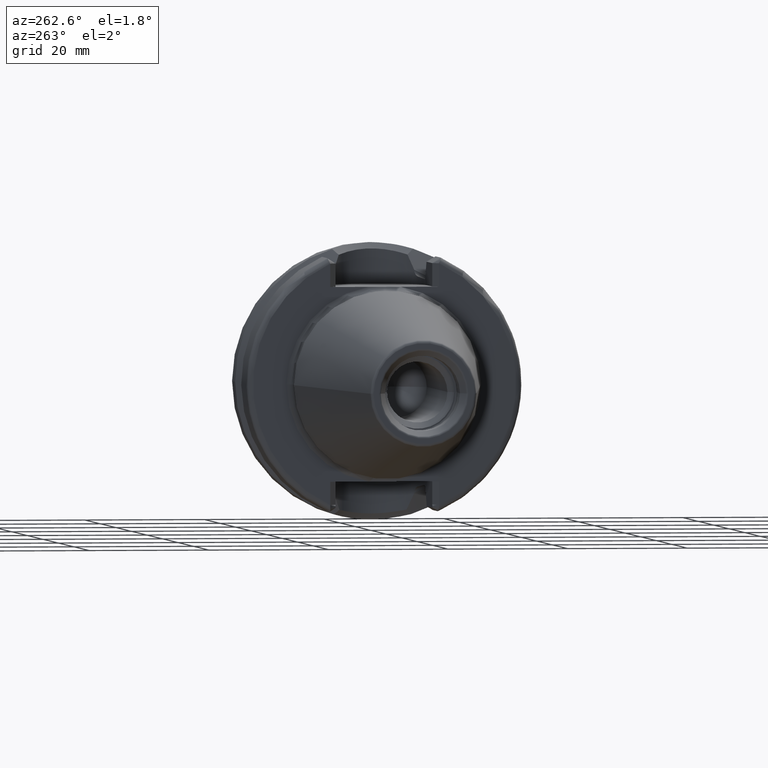
[diagram: clean part render]
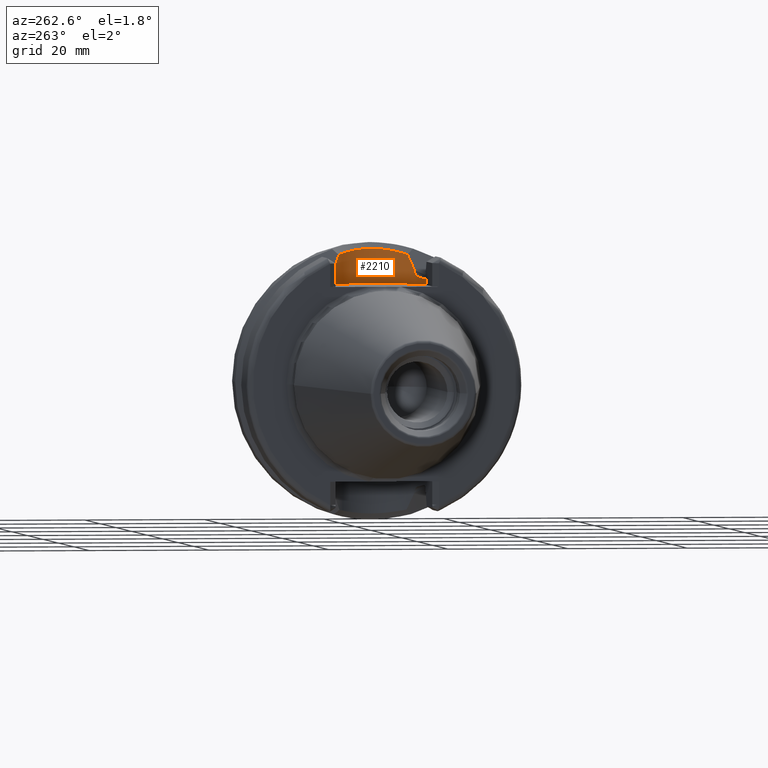
[diagram: same view with one face highlighted and labeled with its STEP entity id]
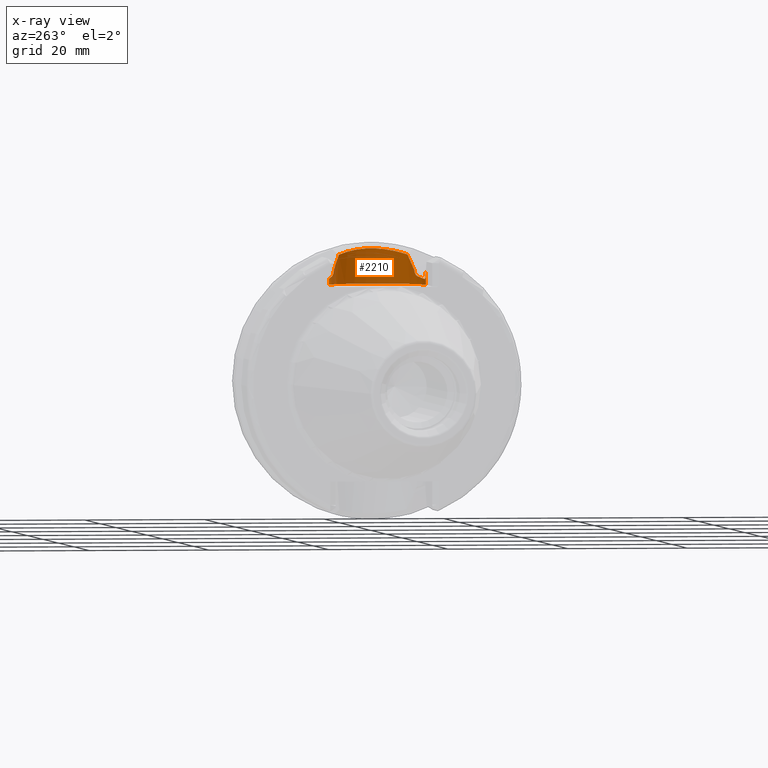
[diagram: x-ray of the same camera — body ghosted, the highlighted face saturated]
A machine part, auxiliary view. The second image highlights one B-rep face of the part: STEP entity #2210.
The next image is the same camera in x-ray: the body ghosted, the highlighted face saturated — about 2% of this face is hidden behind the body in this view.
In plain terms, the highlighted cylindrical surface (partial cylindrical patch) has radius 8.095 mm, axis along (0, 0, 1).
Its self-contained STEP definition (entity closure, byte-faithful):
#426=CARTESIAN_POINT('',(1.48875E1,7.183137806697E0,1.745474595203E1));
#427=CARTESIAN_POINT('',(1.461036501125E1,7.327142609799E0,1.739548376922E1));
#428=CARTESIAN_POINT('',(1.404920492439E1,7.578313334037E0,1.728803651447E1));
#429=CARTESIAN_POINT('',(1.318480954598E1,7.853460451226E0,1.716416337693E1));
#430=CARTESIAN_POINT('',(1.260448853217E1,7.969632667405E0,1.711001901788E1));
#431=CARTESIAN_POINT('',(1.23125E1,8.011817443627E0,1.709024301319E1));
#445=CARTESIAN_POINT('',(1.23125E1,-8.011817443627E0,1.709024301319E1));
#446=CARTESIAN_POINT('',(1.260448853217E1,-7.969632667405E0,1.711001901788E1));
#447=CARTESIAN_POINT('',(1.318480954598E1,-7.853460451226E0,1.716416337693E1));
#448=CARTESIAN_POINT('',(1.404920492439E1,-7.578313334037E0,1.728803651447E1));
#449=CARTESIAN_POINT('',(1.461036501125E1,-7.327142609799E0,1.739548376922E1));
#450=CARTESIAN_POINT('',(1.48875E1,-7.183137806697E0,1.745474595203E1));
#462=CARTESIAN_POINT('',(1.15625E1,-8.084736776791E0,1.788232804335E1));
#463=CARTESIAN_POINT('',(1.15625E1,-8.084736776791E0,1.781359730062E1));
#464=CARTESIAN_POINT('',(1.157743606483E1,-8.084008713788E0,1.768050385507E1));
#465=CARTESIAN_POINT('',(1.164702451808E1,-8.080196327678E0,1.748544180816E1));
#466=CARTESIAN_POINT('',(1.175695528065E1,-8.072931861565E0,1.732053584298E1));
#467=CARTESIAN_POINT('',(1.190535493158E1,-8.060719513235E0,1.718877876759E1));
#468=CARTESIAN_POINT('',(1.208874148617E1,-8.041810725138E0,1.710274000837E1));
#469=CARTESIAN_POINT('',(1.223427404262E1,-8.023119067298E0,1.708494487053E1));
#470=CARTESIAN_POINT('',(1.23125E1,-8.011817443627E0,1.709024301319E1));
#472=DIRECTION('',(0.E0,0.E0,1.E0));
#473=VECTOR('',#472,5.930451084079E-2);
#474=CARTESIAN_POINT('',(1.15625E1,-8.084736776791E0,1.788232804335E1));
#475=LINE('',#474,#473);
#476=CARTESIAN_POINT('',(1.1155E1,-8.095E0,1.870865212813E1));
#477=CARTESIAN_POINT('',(1.122320355344E1,-8.095E0,1.857993600428E1));
#478=CARTESIAN_POINT('',(1.135932539469E1,-8.093276332983E0,1.832336899895E1));
#479=CARTESIAN_POINT('',(1.149487170181E1,-8.088145487832E0,1.806857530355E1));
#480=CARTESIAN_POINT('',(1.15625E1,-8.084736776791E0,1.794163255419E1));
#482=DIRECTION('',(0.E0,0.E0,1.E0));
#483=VECTOR('',#482,2.558652128134E0);
#484=CARTESIAN_POINT('',(1.1155E1,-8.095E0,1.615E1));
#485=LINE('',#484,#483);
#486=CARTESIAN_POINT('',(1.15625E1,8.084736776791E0,1.794163255419E1));
#487=CARTESIAN_POINT('',(1.149487499855E1,8.088145321664E0,1.806856911534E1));
#488=CARTESIAN_POINT('',(1.135933197530E1,8.093276167010E0,1.832335661175E1));
#489=CARTESIAN_POINT('',(1.122320683725E1,8.095E0,1.857992980697E1));
#490=CARTESIAN_POINT('',(1.1155E1,8.095E0,1.870865212813E1));
#492=DIRECTION('',(0.E0,0.E0,1.E0));
#493=VECTOR('',#492,5.930451084079E-2);
#494=CARTESIAN_POINT('',(1.15625E1,8.084736776791E0,1.788232804335E1));
#495=LINE('',#494,#493);
#496=CARTESIAN_POINT('',(1.23125E1,8.011817443627E0,1.709024301319E1));
#497=CARTESIAN_POINT('',(1.223412033661E1,8.023141273833E0,1.708493446022E1));
#498=CARTESIAN_POINT('',(1.208831797670E1,8.041863754075E0,1.710280413489E1));
#499=CARTESIAN_POINT('',(1.190448533030E1,8.060802307436E0,1.718929563694E1));
#500=CARTESIAN_POINT('',(1.175607673362E1,8.072995940587E0,1.732154273478E1));
#501=CARTESIAN_POINT('',(1.164652640216E1,8.080224902242E0,1.748652481923E1));
#502=CARTESIAN_POINT('',(1.157735932460E1,8.084012208743E0,1.768105664530E1));
#503=CARTESIAN_POINT('',(1.15625E1,8.084736776791E0,1.781380327923E1));
#504=CARTESIAN_POINT('',(1.15625E1,8.084736776791E0,1.788232804335E1));
#506=CARTESIAN_POINT('',(1.56375E1,6.740639342822E0,1.843107176075E1));
#507=CARTESIAN_POINT('',(1.56375E1,6.740639342822E0,1.835223565973E1));
#508=CARTESIAN_POINT('',(1.561716943487E1,6.754255410016E0,1.819368091113E1));
#509=CARTESIAN_POINT('',(1.551365732971E1,6.821981327071E0,1.793606136907E1));
#510=CARTESIAN_POINT('',(1.534724837083E1,6.926179270024E0,1.770995100299E1));
#511=CARTESIAN_POINT('',(1.512702377767E1,7.055163449183E0,1.753487145852E1));
#512=CARTESIAN_POINT('',(1.497068250850E1,7.139914535566E0,1.747253359064E1));
#513=CARTESIAN_POINT('',(1.48875E1,7.183137806697E0,1.745474595203E1));
#515=DIRECTION('',(0.E0,-1.543465448134E-14,1.E0));
#516=VECTOR('',#515,5.754443164075E-2);
#517=CARTESIAN_POINT('',(1.56375E1,6.740639342822E0,1.843107176075E1));
#518=LINE('',#517,#516);
#519=CARTESIAN_POINT('',(1.685762423454E1,5.745354805374E0,2.102137764954E1));
#520=CARTESIAN_POINT('',(1.667158652396E1,5.930008876853E0,2.063686487213E1));
#521=CARTESIAN_POINT('',(1.628166811893E1,6.281182202369E0,1.982963416011E1));
#522=CARTESIAN_POINT('',(1.585764706705E1,6.594242365047E0,1.894784734616E1));
#523=CARTESIAN_POINT('',(1.56375E1,6.740639342822E0,1.848861619239E1));
#525=CARTESIAN_POINT('',(1.685762423454E1,5.745354805374E0,2.102137764954E1));
#526=CARTESIAN_POINT('',(1.697779770550E1,5.626136088152E0,2.106252297309E1));
#527=CARTESIAN_POINT('',(1.743755666385E1,5.140082156780E0,2.122428465158E1));
#528=CARTESIAN_POINT('',(1.812816032758E1,4.200121990198E0,2.149450952646E1));
#529=CARTESIAN_POINT('',(1.877276778562E1,2.867032923799E0,2.177159791335E1));
#530=CARTESIAN_POINT('',(1.916083388966E1,1.458814329775E0,2.194831858969E1));
#531=CARTESIAN_POINT('',(1.929118281632E1,3.703622594896E-2,2.200926032693E1));
#532=CARTESIAN_POINT('',(1.917392581487E1,-1.384592569816E0,2.195440356236E1));
#533=CARTESIAN_POINT('',(1.879919831505E1,-2.795658581170E0,2.178340212711E1));
#534=CARTESIAN_POINT('',(1.816770202464E1,-4.133576223623E0,2.151091403437E1));
#535=CARTESIAN_POINT('',(1.747159732381E1,-5.100439615657E0,2.123687604330E1));
#536=CARTESIAN_POINT('',(1.699614287571E1,-5.607914957456E0,2.106882289373E1));
#537=CARTESIAN_POINT('',(1.685763265114E1,-5.745346451357E0,2.102139504543E1));
#539=CARTESIAN_POINT('',(1.56375E1,-6.740639342822E0,1.848861619239E1));
#540=CARTESIAN_POINT('',(1.585767247034E1,-6.594225471952E0,1.894790033793E1));
#541=CARTESIAN_POINT('',(1.628171976104E1,-6.281140526994E0,1.982974129959E1));
#542=CARTESIAN_POINT('',(1.667161664884E1,-5.929979516978E0,2.063692715611E1));
#543=CARTESIAN_POINT('',(1.685763265114E1,-5.745346451357E0,2.102139504543E1));
#545=DIRECTION('',(0.E0,0.E0,1.E0));
#546=VECTOR('',#545,5.754443164074E-2);
#547=CARTESIAN_POINT('',(1.56375E1,-6.740639342822E0,1.843107176075E1));
#548=LINE('',#547,#546);
#549=CARTESIAN_POINT('',(1.48875E1,-7.183137806697E0,1.745474595203E1));
#550=CARTESIAN_POINT('',(1.497069018136E1,-7.139910548601E0,1.747253523139E1));
#551=CARTESIAN_POINT('',(1.512704810528E1,-7.055150292263E0,1.753488060805E1));
#552=CARTESIAN_POINT('',(1.534731396602E1,-6.926140003427E0,1.771001150802E1));
#553=CARTESIAN_POINT('',(1.551373210350E1,-6.821933350112E0,1.793618747596E1));
#554=CARTESIAN_POINT('',(1.561720305768E1,-6.754232932078E0,1.819382523887E1));
#555=CARTESIAN_POINT('',(1.56375E1,-6.740639342822E0,1.835229604119E1));
#556=CARTESIAN_POINT('',(1.56375E1,-6.740639342822E0,1.843107176075E1));
#562=CARTESIAN_POINT('',(1.1155E1,-8.095E0,1.870865212813E1));
#648=CARTESIAN_POINT('',(1.1155E1,8.095E0,1.870865212813E1));
#654=DIRECTION('',(0.E0,0.E0,1.E0));
#655=VECTOR('',#654,2.558652128134E0);
#656=CARTESIAN_POINT('',(1.1155E1,8.095E0,1.615E1));
#657=LINE('',#656,#655);
#682=CARTESIAN_POINT('',(1.1155E1,0.E0,1.615E1));
#683=DIRECTION('',(0.E0,0.E0,1.E0));
#684=DIRECTION('',(0.E0,-1.E0,0.E0));
#685=AXIS2_PLACEMENT_3D('',#682,#683,#684);
#1353=CARTESIAN_POINT('',(1.15625E1,-8.084736776791E0,1.788232804335E1));
#1355=VERTEX_POINT('',#1353);
#1356=CARTESIAN_POINT('',(1.15625E1,8.084736776791E0,1.788232804335E1));
#1358=VERTEX_POINT('',#1356);
#1361=CARTESIAN_POINT('',(1.23125E1,-8.011817443627E0,1.709024301319E1));
#1363=VERTEX_POINT('',#1361);
#1364=CARTESIAN_POINT('',(1.23125E1,8.011817443627E0,1.709024301319E1));
#1366=VERTEX_POINT('',#1364);
#1368=CARTESIAN_POINT('',(1.56375E1,-6.740639342822E0,1.843107176075E1));
#1370=VERTEX_POINT('',#1368);
#1373=CARTESIAN_POINT('',(1.48875E1,-7.183137806697E0,1.745474595203E1));
#1375=VERTEX_POINT('',#1373);
#1376=CARTESIAN_POINT('',(1.48875E1,7.183137806697E0,1.745474595203E1));
#1378=VERTEX_POINT('',#1376);
#1381=CARTESIAN_POINT('',(1.56375E1,6.740639342822E0,1.843107176075E1));
#1383=VERTEX_POINT('',#1381);
#1384=CARTESIAN_POINT('',(1.56375E1,6.740639342822E0,1.848861619239E1));
#1386=VERTEX_POINT('',#1384);
#1389=CARTESIAN_POINT('',(1.56375E1,-6.740639342822E0,1.848861619239E1));
#1391=VERTEX_POINT('',#1389);
#1393=CARTESIAN_POINT('',(1.15625E1,8.084736776791E0,1.794163255419E1));
#1395=VERTEX_POINT('',#1393);
#1396=CARTESIAN_POINT('',(1.15625E1,-8.084736776791E0,1.794163255419E1));
#1398=VERTEX_POINT('',#1396);
#1482=CARTESIAN_POINT('',(1.1155E1,-8.095E0,1.615E1));
#1483=CARTESIAN_POINT('',(1.1155E1,8.095E0,1.615E1));
#1484=VERTEX_POINT('',#1482);
#1485=VERTEX_POINT('',#1483);
#1498=VERTEX_POINT('',#648);
#1501=VERTEX_POINT('',#562);
#1502=VERTEX_POINT('',#543);
#1503=VERTEX_POINT('',#519);
#2179=CARTESIAN_POINT('',(1.1155E1,0.E0,1.615E1));
#2180=DIRECTION('',(0.E0,0.E0,1.E0));
#2181=DIRECTION('',(1.E0,0.E0,0.E0));
#2182=AXIS2_PLACEMENT_3D('',#2179,#2180,#2181);
#2183=CYLINDRICAL_SURFACE('',#2182,8.095E0);
#2184=ORIENTED_EDGE('',*,*,#2119,.F.);
#2185=ORIENTED_EDGE('',*,*,#2148,.F.);
#2186=ORIENTED_EDGE('',*,*,#2172,.T.);
#2187=ORIENTED_EDGE('',*,*,#1912,.F.);
#2189=ORIENTED_EDGE('',*,*,#2188,.F.);
#2191=ORIENTED_EDGE('',*,*,#2190,.T.);
#2193=ORIENTED_EDGE('',*,*,#2192,.T.);
#2194=ORIENTED_EDGE('',*,*,#1884,.F.);
#2195=ORIENTED_EDGE('',*,*,#2161,.F.);
#2196=ORIENTED_EDGE('',*,*,#2134,.F.);
#2197=ORIENTED_EDGE('',*,*,#2106,.F.);
#2198=ORIENTED_EDGE('',*,*,#2078,.F.);
#2199=ORIENTED_EDGE('',*,*,#2049,.T.);
#2201=ORIENTED_EDGE('',*,*,#2200,.F.);
#2203=ORIENTED_EDGE('',*,*,#2202,.T.);
#2205=ORIENTED_EDGE('',*,*,#2204,.F.);
#2206=ORIENTED_EDGE('',*,*,#2061,.F.);
#2207=ORIENTED_EDGE('',*,*,#2092,.F.);
#2208=EDGE_LOOP('',(#2184,#2185,#2186,#2187,#2189,#2191,#2193,#2194,#2195,#2196,
#2197,#2198,#2199,#2201,#2203,#2205,#2206,#2207));
#2209=FACE_OUTER_BOUND('',#2208,.F.);
#2210=ADVANCED_FACE('',(#2209),#2183,.F.);
#432=B_SPLINE_CURVE_WITH_KNOTS('',3,(#426,#427,#428,#429,#430,#431),
.UNSPECIFIED.,.F.,.F.,(4,1,1,4),(0.E0,3.333333333333E-1,6.666666666667E-1,1.E0),
.UNSPECIFIED.);
#451=B_SPLINE_CURVE_WITH_KNOTS('',3,(#445,#446,#447,#448,#449,#450),
.UNSPECIFIED.,.F.,.F.,(4,1,1,4),(0.E0,3.333333333333E-1,6.666666666667E-1,1.E0),
.UNSPECIFIED.);
#471=B_SPLINE_CURVE_WITH_KNOTS('',3,(#462,#463,#464,#465,#466,#467,#468,#469,
#470),.UNSPECIFIED.,.F.,.F.,(4,1,1,1,1,1,4),(0.E0,1.666666666667E-1,
3.333333333333E-1,5.E-1,6.666666666667E-1,8.333333333333E-1,1.E0),
.UNSPECIFIED.);
#481=B_SPLINE_CURVE_WITH_KNOTS('',3,(#476,#477,#478,#479,#480),.UNSPECIFIED.,
.F.,.F.,(4,1,4),(0.E0,5.E-1,1.E0),.UNSPECIFIED.);
#491=B_SPLINE_CURVE_WITH_KNOTS('',3,(#486,#487,#488,#489,#490),.UNSPECIFIED.,
.F.,.F.,(4,1,4),(0.E0,5.E-1,1.E0),.UNSPECIFIED.);
#505=B_SPLINE_CURVE_WITH_KNOTS('',3,(#496,#497,#498,#499,#500,#501,#502,#503,
#504),.UNSPECIFIED.,.F.,.F.,(4,1,1,1,1,1,4),(0.E0,1.666666666667E-1,
3.333333333333E-1,5.E-1,6.666666666667E-1,8.333333333333E-1,1.E0),
.UNSPECIFIED.);
#514=B_SPLINE_CURVE_WITH_KNOTS('',3,(#506,#507,#508,#509,#510,#511,#512,#513),
.UNSPECIFIED.,.F.,.F.,(4,1,1,1,1,4),(0.E0,2.E-1,4.E-1,6.E-1,8.E-1,1.E0),
.UNSPECIFIED.);
#524=B_SPLINE_CURVE_WITH_KNOTS('',3,(#519,#520,#521,#522,#523),.UNSPECIFIED.,
.F.,.F.,(4,1,4),(0.E0,5.E-1,1.E0),.UNSPECIFIED.);
#538=B_SPLINE_CURVE_WITH_KNOTS('',3,(#525,#526,#527,#528,#529,#530,#531,#532,
#533,#534,#535,#536,#537),.UNSPECIFIED.,.F.,.F.,(4,1,1,1,1,1,1,1,1,1,4),(0.E0,
3.884636510345E-2,1.533968406853E-1,2.679473162671E-1,3.824977918489E-1,
4.970482674307E-1,6.115987430126E-1,7.261492185944E-1,8.406996941762E-1,
9.552501697580E-1,1.E0),.UNSPECIFIED.);
#544=B_SPLINE_CURVE_WITH_KNOTS('',3,(#539,#540,#541,#542,#543),.UNSPECIFIED.,
.F.,.F.,(4,1,4),(0.E0,5.E-1,1.E0),.UNSPECIFIED.);
#557=B_SPLINE_CURVE_WITH_KNOTS('',3,(#549,#550,#551,#552,#553,#554,#555,#556),
.UNSPECIFIED.,.F.,.F.,(4,1,1,1,1,4),(0.E0,2.E-1,4.E-1,6.E-1,8.E-1,1.E0),
.UNSPECIFIED.);
#686=CIRCLE('',#685,8.095E0);
#1884=EDGE_CURVE('',#1395,#1498,#491,.T.);
#1912=EDGE_CURVE('',#1501,#1398,#481,.T.);
#2049=EDGE_CURVE('',#1383,#1386,#518,.T.);
#2061=EDGE_CURVE('',#1370,#1391,#548,.T.);
#2078=EDGE_CURVE('',#1383,#1378,#514,.T.);
#2092=EDGE_CURVE('',#1375,#1370,#557,.T.);
#2106=EDGE_CURVE('',#1378,#1366,#432,.T.);
#2119=EDGE_CURVE('',#1363,#1375,#451,.T.);
#2134=EDGE_CURVE('',#1366,#1358,#505,.T.);
#2148=EDGE_CURVE('',#1355,#1363,#471,.T.);
#2161=EDGE_CURVE('',#1358,#1395,#495,.T.);
#2172=EDGE_CURVE('',#1355,#1398,#475,.T.);
#2188=EDGE_CURVE('',#1484,#1501,#485,.T.);
#2190=EDGE_CURVE('',#1484,#1485,#686,.T.);
#2192=EDGE_CURVE('',#1485,#1498,#657,.T.);
#2200=EDGE_CURVE('',#1503,#1386,#524,.T.);
#2202=EDGE_CURVE('',#1503,#1502,#538,.T.);
#2204=EDGE_CURVE('',#1391,#1502,#544,.T.);